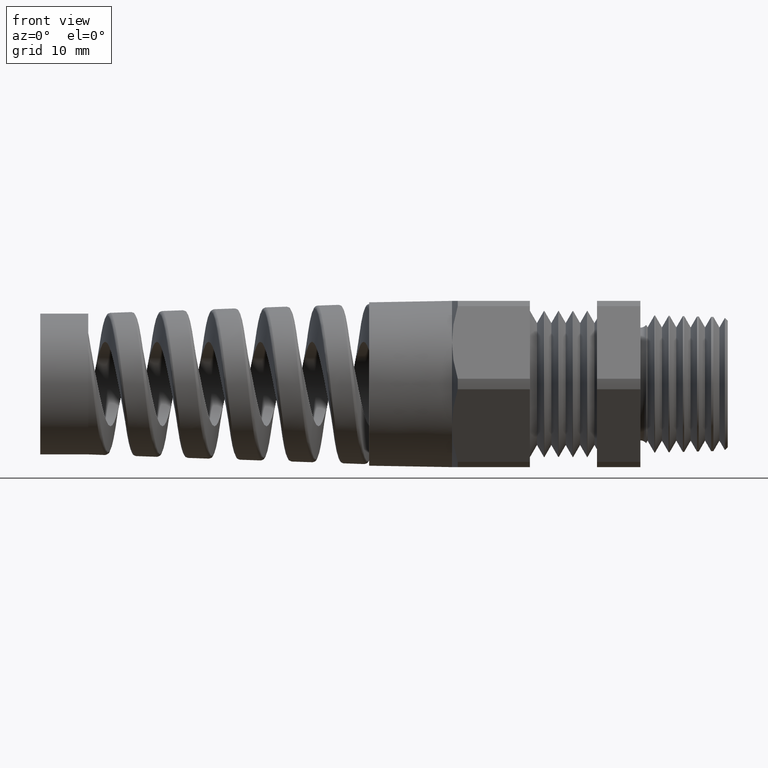
[diagram: clean part render]
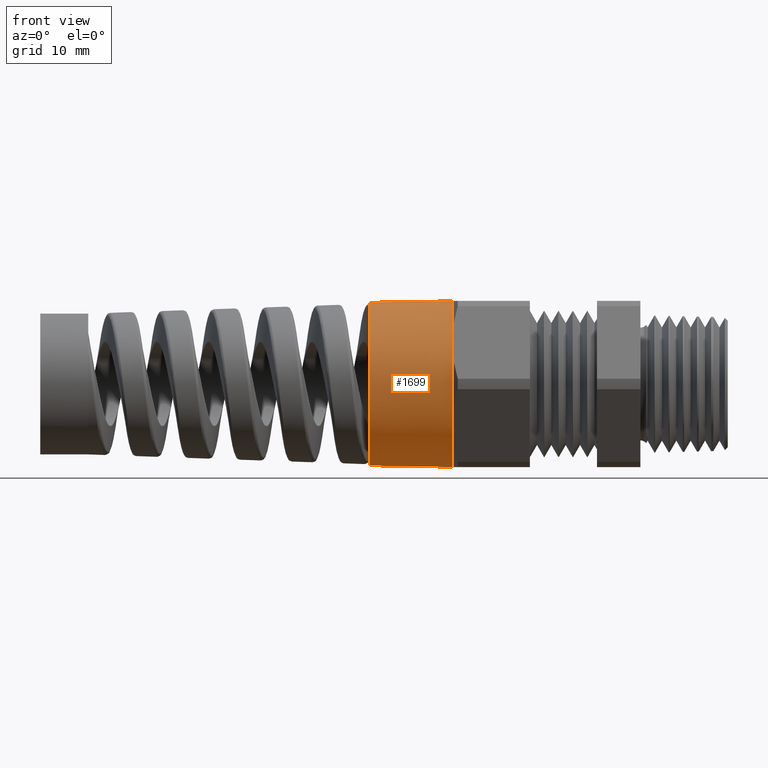
[diagram: same view with one face highlighted and labeled with its STEP entity id]
A machine part, front view. The second image highlights one B-rep face of the part: STEP entity #1699.
In plain terms, the highlighted conical surface has half-angle 1 deg.
Its self-contained STEP definition (entity closure, byte-faithful):
#656 = EDGE_CURVE ( 'NONE', #1730, #664, #3092, .T. ) ;
#657 = ORIENTED_EDGE ( 'NONE', *, *, #659, .T. ) ;
#659 = EDGE_CURVE ( 'NONE', #664, #739, #3087, .T. ) ;
#664 = VERTEX_POINT ( 'NONE', #3160 ) ;
#738 = ORIENTED_EDGE ( 'NONE', *, *, #740, .T. ) ;
#739 = VERTEX_POINT ( 'NONE', #3571 ) ;
#740 = EDGE_CURVE ( 'NONE', #1728, #1730, #3570, .T. ) ;
#742 = ORIENTED_EDGE ( 'NONE', *, *, #2770, .F. ) ;
#1630 = EDGE_CURVE ( 'NONE', #1696, #1728, #6678, .T. ) ;
#1631 = ORIENTED_EDGE ( 'NONE', *, *, #656, .T. ) ;
#1632 = ORIENTED_EDGE ( 'NONE', *, *, #1630, .T. ) ;
#1693 = VERTEX_POINT ( 'NONE', #7053 ) ;
#1694 = EDGE_LOOP ( 'NONE', ( #1697, #1632, #738, #1631, #657, #742 ) ) ;
#1696 = VERTEX_POINT ( 'NONE', #7081 ) ;
#1697 = ORIENTED_EDGE ( 'NONE', *, *, #1698, .F. ) ;
#1698 = EDGE_CURVE ( 'NONE', #1696, #1693, #7150, .T. ) ;
#1699 = ADVANCED_FACE ( 'NONE', ( #7145 ), #7144, .T. ) ;
#1728 = VERTEX_POINT ( 'NONE', #7210 ) ;
#1730 = VERTEX_POINT ( 'NONE', #7209 ) ;
#2770 = EDGE_CURVE ( 'NONE', #1693, #739, #9643, .T. ) ;
#3085 = CARTESIAN_POINT ( 'NONE',  ( -0.6687500000000000700, 0.0000000000000000000, 0.0000000000000000000 ) ) ;
#3086 = AXIS2_PLACEMENT_3D ( 'NONE', #3085, #3164, #3163 ) ;
#3087 = CIRCLE ( 'NONE', #3086, 0.2949999999999997100 ) ;
#3088 = DIRECTION ( 'NONE',  ( 0.0000000000000000000, 0.0000000000000000000, 1.000000000000000000 ) ) ;
#3089 = DIRECTION ( 'NONE',  ( -1.000000000000000000, 0.0000000000000000000, 0.0000000000000000000 ) ) ;
#3090 = CARTESIAN_POINT ( 'NONE',  ( -0.6687500000000000700, 0.0000000000000000000, 0.0000000000000000000 ) ) ;
#3091 = AXIS2_PLACEMENT_3D ( 'NONE', #3090, #3089, #3088 ) ;
#3092 = CIRCLE ( 'NONE', #3091, 0.2949999999999997100 ) ;
#3160 = CARTESIAN_POINT ( 'NONE',  ( -0.6687500000000000700, -0.2554774941164092400, 0.1475000000000001000 ) ) ;
#3163 = DIRECTION ( 'NONE',  ( 0.0000000000000000000, 0.0000000000000000000, 1.000000000000000000 ) ) ;
#3164 = DIRECTION ( 'NONE',  ( -1.000000000000000000, 0.0000000000000000000, 0.0000000000000000000 ) ) ;
#3566 = DIRECTION ( 'NONE',  ( 0.0000000000000000000, 0.0000000000000000000, 1.000000000000000000 ) ) ;
#3567 = DIRECTION ( 'NONE',  ( -1.000000000000000000, 0.0000000000000000000, 0.0000000000000000000 ) ) ;
#3568 = CARTESIAN_POINT ( 'NONE',  ( -0.6687500000000000700, 0.0000000000000000000, 0.0000000000000000000 ) ) ;
#3569 = AXIS2_PLACEMENT_3D ( 'NONE', #3568, #3567, #3566 ) ;
#3570 = CIRCLE ( 'NONE', #3569, 0.2949999999999997100 ) ;
#3571 = CARTESIAN_POINT ( 'NONE',  ( -0.6687500000000000700, 0.0000000000000000000, 0.2949999999999997100 ) ) ;
#6675 = DIRECTION ( 'NONE',  ( 0.9998476951563912700, -2.137303368083796300E-018, -0.01745240643728355000 ) ) ;
#6676 = VECTOR ( 'NONE', #6675, 39.37007874015748100 ) ;
#6677 = CARTESIAN_POINT ( 'NONE',  ( -0.6687499999999999600, -3.612708057484689500E-017, -0.2949999999999997600 ) ) ;
#6678 = LINE ( 'NONE', #6677, #6676 ) ;
#7053 = CARTESIAN_POINT ( 'NONE',  ( -0.9626899999999999300, 0.0000000000000000000, 0.2898692582149995400 ) ) ;
#7080 = CARTESIAN_POINT ( 'NONE',  ( -0.6687499999999999600, 0.0000000000000000000, 0.0000000000000000000 ) ) ;
#7081 = CARTESIAN_POINT ( 'NONE',  ( -0.9626899999999999300, -3.581291324963428100E-017, -0.2898692582149995400 ) ) ;
#7140 = DIRECTION ( 'NONE',  ( 0.0000000000000000000, 0.0000000000000000000, 1.000000000000000000 ) ) ;
#7141 = DIRECTION ( 'NONE',  ( 1.000000000000000000, 0.0000000000000000000, 0.0000000000000000000 ) ) ;
#7142 = AXIS2_PLACEMENT_3D ( 'NONE', #7080, #7141, #7140 ) ;
#7144 = CONICAL_SURFACE ( 'NONE', #7142, 0.2949999999999997600, 0.01745329251994333400 ) ;
#7145 = FACE_OUTER_BOUND ( 'NONE', #1694, .T. ) ;
#7146 = DIRECTION ( 'NONE',  ( 0.0000000000000000000, 0.0000000000000000000, 1.000000000000000000 ) ) ;
#7147 = DIRECTION ( 'NONE',  ( -1.000000000000000000, 0.0000000000000000000, 0.0000000000000000000 ) ) ;
#7148 = CARTESIAN_POINT ( 'NONE',  ( -0.9626899999999999300, 0.0000000000000000000, 0.0000000000000000000 ) ) ;
#7149 = AXIS2_PLACEMENT_3D ( 'NONE', #7148, #7147, #7146 ) ;
#7150 = CIRCLE ( 'NONE', #7149, 0.2898692582149995400 ) ;
#7209 = CARTESIAN_POINT ( 'NONE',  ( -0.6687500000000000700, -0.2554774941164094100, -0.1475000000000001600 ) ) ;
#7210 = CARTESIAN_POINT ( 'NONE',  ( -0.6687500000000000700, 0.0000000000000000000, -0.2950000000000001500 ) ) ;
#9640 = DIRECTION ( 'NONE',  ( 0.9998476951563912700, 0.0000000000000000000, 0.01745240643728355000 ) ) ;
#9641 = VECTOR ( 'NONE', #9640, 39.37007874015748100 ) ;
#9642 = CARTESIAN_POINT ( 'NONE',  ( -0.6687499999999999600, 0.0000000000000000000, 0.2949999999999997600 ) ) ;
#9643 = LINE ( 'NONE', #9642, #9641 ) ;